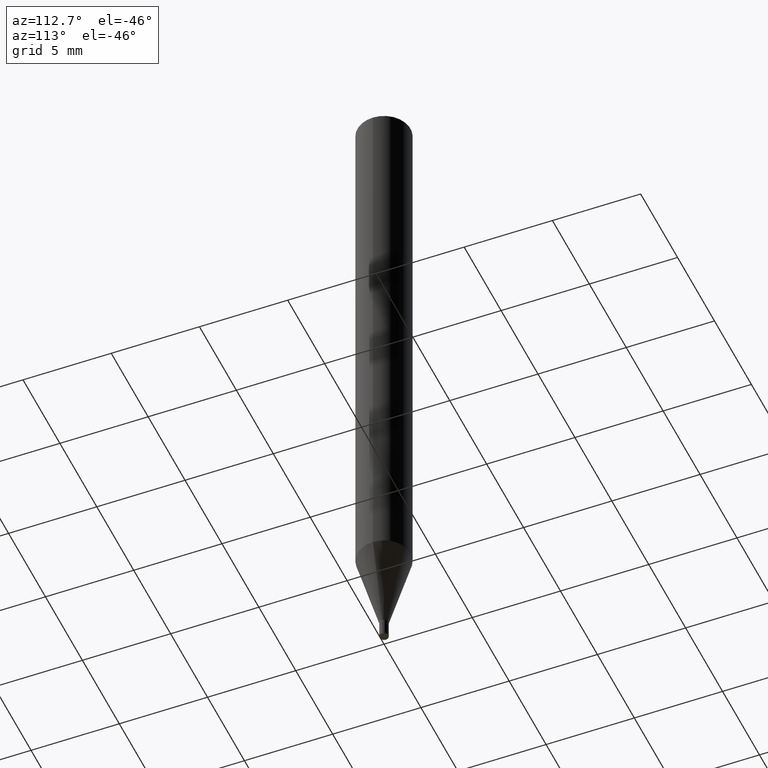
[diagram: clean part render]
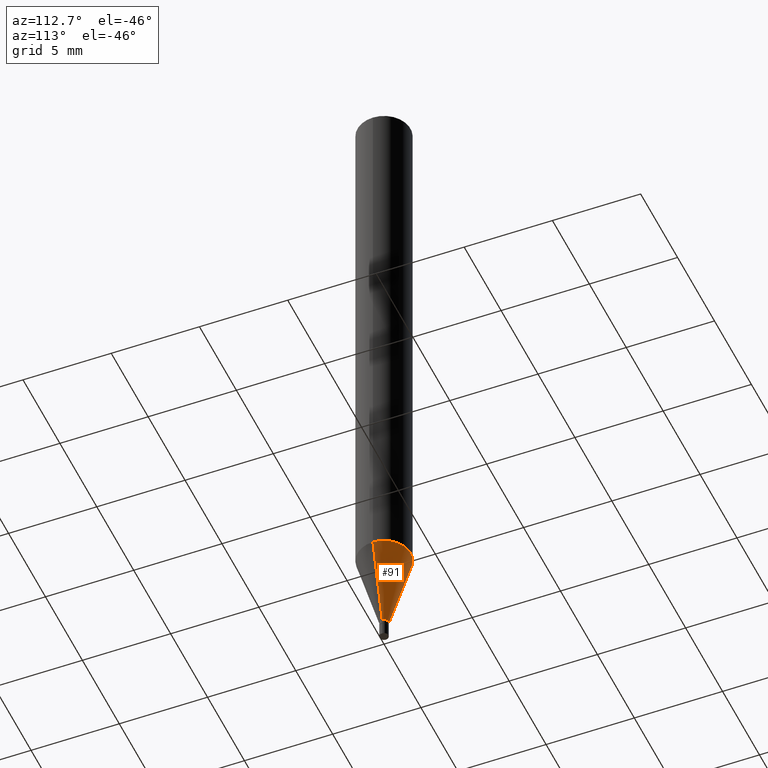
[diagram: same view with one face highlighted and labeled with its STEP entity id]
A machine part, auxiliary view. The second image highlights one B-rep face of the part: STEP entity #91.
In plain terms, the highlighted conical surface has half-angle 15 deg.
Its self-contained STEP definition (entity closure, byte-faithful):
#9 = CARTESIAN_POINT ( 'NONE',  ( 0.05904999999999999832, -4.855194944695011199E-15, -1.272483100267611356 ) ) ;
#15 = DIRECTION ( 'NONE',  ( -2.445468806185136597E-29, 3.491481338843145583E-15, 1.000000000000000000 ) ) ;
#41 = CARTESIAN_POINT ( 'NONE',  ( -0.05904999999999999832, -4.023275513111297575E-15, -1.272483100267611356 ) ) ;
#47 = CARTESIAN_POINT ( 'NONE',  ( 3.560847128686176768E-29, -5.083945977489503852E-15, -1.456099999999999728 ) ) ;
#49 = VERTEX_POINT ( 'NONE', #41 ) ;
#77 = CARTESIAN_POINT ( 'NONE',  ( 0.009849999999999924788, -5.152728159864713460E-15, -1.456099999999999728 ) ) ;
#89 = DIRECTION ( 'NONE',  ( -2.445468806185136597E-29, 3.491481338843145583E-15, 1.000000000000000000 ) ) ;
#91 = ADVANCED_FACE ( 'NONE', ( #185 ), #150, .T. ) ;
#93 = VERTEX_POINT ( 'NONE', #109 ) ;
#109 = CARTESIAN_POINT ( 'NONE',  ( 0.009849999999999924788, -5.152728159864713460E-15, -1.456099999999999728 ) ) ;
#112 = AXIS2_PLACEMENT_3D ( 'NONE', #313, #15, #266 ) ;
#123 = EDGE_CURVE ( 'NONE', #93, #388, #265, .T. ) ;
#130 = ORIENTED_EDGE ( 'NONE', *, *, #123, .F. ) ;
#135 = AXIS2_PLACEMENT_3D ( 'NONE', #47, #89, #239 ) ;
#139 = VERTEX_POINT ( 'NONE', #154 ) ;
#150 = CONICAL_SURFACE ( 'NONE', #397, 0.009849999999999924788, 0.2617993877991501850 ) ;
#154 = CARTESIAN_POINT ( 'NONE',  ( -0.009849999999999924788, -4.518616515564216084E-15, -1.456099999999999728 ) ) ;
#158 = EDGE_CURVE ( 'NONE', #139, #49, #455, .T. ) ;
#165 = VECTOR ( 'NONE', #273, 39.37007874015748143 ) ;
#185 = FACE_OUTER_BOUND ( 'NONE', #458, .T. ) ;
#222 = CIRCLE ( 'NONE', #135, 0.009849999999999924788 ) ;
#227 = DIRECTION ( 'NONE',  ( 0.2588190451025214611, 1.565188264969620982E-15, 0.9659258262890679791 ) ) ;
#239 = DIRECTION ( 'NONE',  ( 1.000000000000000000, -6.982962677686282488E-15, 0.000000000000000000 ) ) ;
#240 = ORIENTED_EDGE ( 'NONE', *, *, #158, .T. ) ;
#265 = LINE ( 'NONE', #77, #389 ) ;
#266 = DIRECTION ( 'NONE',  ( 1.000000000000000000, -6.982962677686273021E-15, 0.000000000000000000 ) ) ;
#271 = CARTESIAN_POINT ( 'NONE',  ( -0.009849999999999924788, -5.013957518017134593E-15, -1.456099999999999728 ) ) ;
#273 = DIRECTION ( 'NONE',  ( -0.2588190451025214611, 5.211531920934550253E-15, 0.9659258262890679791 ) ) ;
#280 = EDGE_CURVE ( 'NONE', #93, #139, #222, .T. ) ;
#286 = ORIENTED_EDGE ( 'NONE', *, *, #280, .T. ) ;
#313 = CARTESIAN_POINT ( 'NONE',  ( 3.111817728102196803E-29, -4.442850998577635490E-15, -1.272483100267611356 ) ) ;
#323 = ORIENTED_EDGE ( 'NONE', *, *, #356, .F. ) ;
#325 = CIRCLE ( 'NONE', #112, 0.05904999999999999832 ) ;
#330 = DIRECTION ( 'NONE',  ( -2.445468806185136597E-29, 3.491481338843145583E-15, 1.000000000000000000 ) ) ;
#356 = EDGE_CURVE ( 'NONE', #388, #49, #325, .T. ) ;
#367 = CARTESIAN_POINT ( 'NONE',  ( 3.560847128686176768E-29, -5.083945977489503852E-15, -1.456099999999999728 ) ) ;
#388 = VERTEX_POINT ( 'NONE', #9 ) ;
#389 = VECTOR ( 'NONE', #227, 39.37007874015748143 ) ;
#397 = AXIS2_PLACEMENT_3D ( 'NONE', #367, #330, #437 ) ;
#437 = DIRECTION ( 'NONE',  ( 1.000000000000000000, -6.982962677686282488E-15, 0.000000000000000000 ) ) ;
#455 = LINE ( 'NONE', #271, #165 ) ;
#458 = EDGE_LOOP ( 'NONE', ( #286, #240, #323, #130 ) ) ;